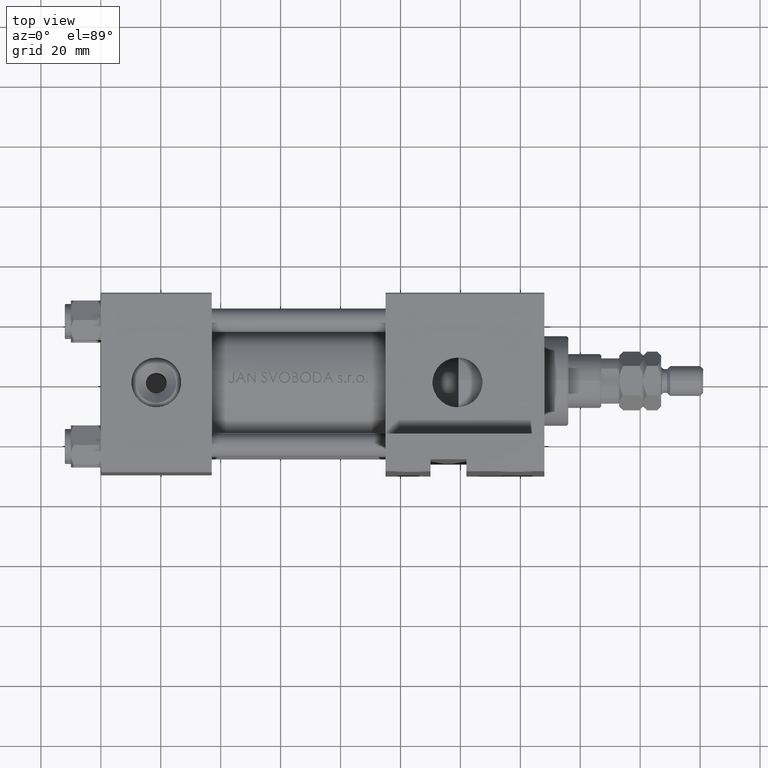
[diagram: clean part render]
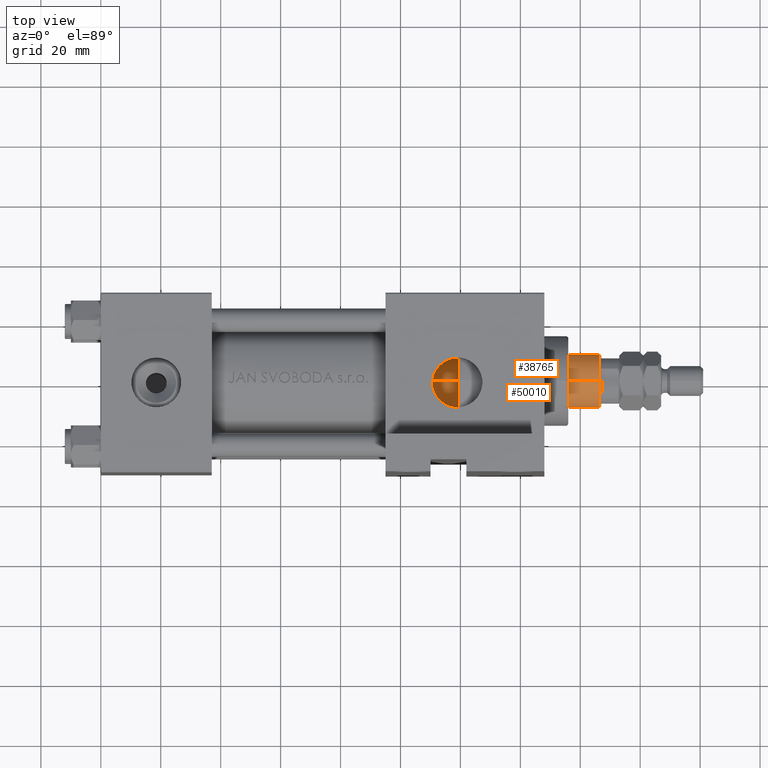
[diagram: same view with one multi-face feature highlighted, each face labeled with its STEP entity id]
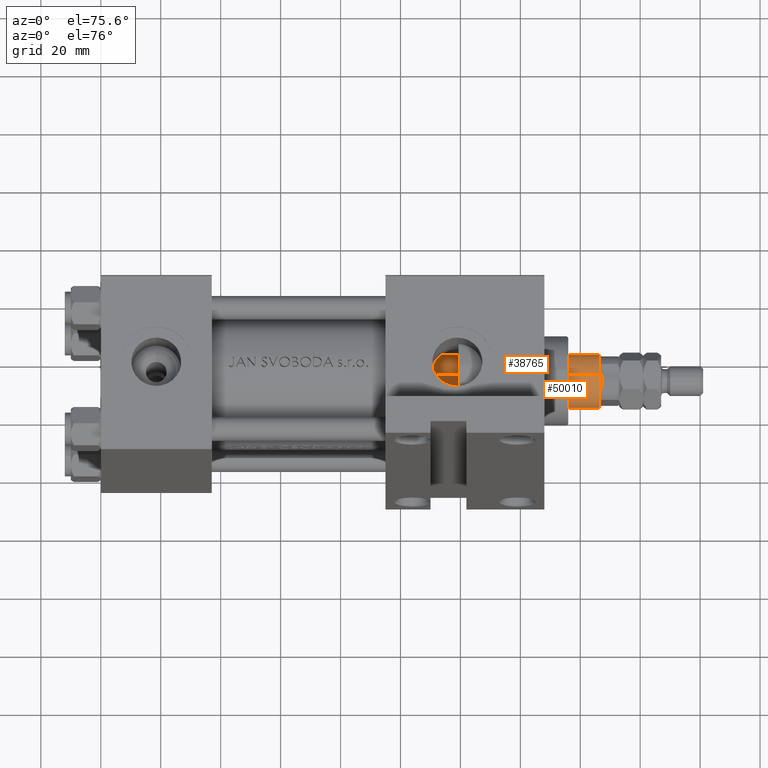
[diagram: same view with one multi-face feature highlighted, each face labeled with its STEP entity id]
A machine part, top view. The highlighted faces form ONE feature: a constant-radius fillet chain: 2 tangent blend faces with common blend radius 9 mm. The faces share edges in the B-rep.
A second angle (auxiliary view) of the same feature is appended — it is thin or edge-on in the first view.
Their STEP definitions:
[1] entity #50010 (Cylinder):
#1448 = FACE_OUTER_BOUND ( 'NONE', #5015, .T. ) ;
#2354 = DIRECTION ( 'NONE',  ( 0.000000000000000000, 0.000000000000000000, -1.000000000000000000 ) ) ;
#2552 = CIRCLE ( 'NONE', #48197, 9.000000000000000000 ) ;
#5015 = EDGE_LOOP ( 'NONE', ( #27031, #22689, #8510, #32571 ) ) ;
#7445 = CARTESIAN_POINT ( 'NONE',  ( -9.000000000000000000, 0.000000000000000000, 38.00000000000000000 ) ) ;
#7487 = VECTOR ( 'NONE', #16770, 1000.000000000000000 ) ;
#8510 = ORIENTED_EDGE ( 'NONE', *, *, #26155, .T. ) ;
#9318 = DIRECTION ( 'NONE',  ( 1.000000000000000000, 0.000000000000000000, 0.000000000000000000 ) ) ;
#11097 = DIRECTION ( 'NONE',  ( -0.000000000000000000, -0.000000000000000000, -1.000000000000000000 ) ) ;
#12755 = CARTESIAN_POINT ( 'NONE',  ( 0.000000000000000000, 0.000000000000000000, 38.00000000000000000 ) ) ;
#13107 = DIRECTION ( 'NONE',  ( -0.000000000000000000, -0.000000000000000000, -1.000000000000000000 ) ) ;
#15849 = LINE ( 'NONE', #27217, #27127 ) ;
#16307 = EDGE_CURVE ( 'NONE', #23542, #27494, #17547, .T. ) ;
#16770 = DIRECTION ( 'NONE',  ( -0.000000000000000000, -0.000000000000000000, -1.000000000000000000 ) ) ;
#17242 = DIRECTION ( 'NONE',  ( 0.000000000000000000, 0.000000000000000000, 1.000000000000000000 ) ) ;
#17547 = LINE ( 'NONE', #25223, #7487 ) ;
#22689 = ORIENTED_EDGE ( 'NONE', *, *, #31372, .T. ) ;
#22897 = EDGE_CURVE ( 'NONE', #23542, #51284, #52287, .T. ) ;
#23542 = VERTEX_POINT ( 'NONE', #40266 ) ;
#25223 = CARTESIAN_POINT ( 'NONE',  ( -9.000000000000000000, 0.000000000000000000, 130.0000000000000000 ) ) ;
#25262 = DIRECTION ( 'NONE',  ( -1.000000000000000000, 0.000000000000000000, 0.000000000000000000 ) ) ;
#26155 = EDGE_CURVE ( 'NONE', #40544, #27494, #2552, .T. ) ;
#26430 = DIRECTION ( 'NONE',  ( 1.000000000000000000, 0.000000000000000000, 0.000000000000000000 ) ) ;
#27031 = ORIENTED_EDGE ( 'NONE', *, *, #22897, .T. ) ;
#27127 = VECTOR ( 'NONE', #11097, 1000.000000000000000 ) ;
#27217 = CARTESIAN_POINT ( 'NONE',  ( 9.000000000000000000, 1.102182119232617714E-15, 130.0000000000000000 ) ) ;
#27494 = VERTEX_POINT ( 'NONE', #7445 ) ;
#29419 = AXIS2_PLACEMENT_3D ( 'NONE', #40133, #2354, #26430 ) ;
#31372 = EDGE_CURVE ( 'NONE', #51284, #40544, #15849, .T. ) ;
#32571 = ORIENTED_EDGE ( 'NONE', *, *, #16307, .F. ) ;
#33414 = CARTESIAN_POINT ( 'NONE',  ( 9.000000000000000000, 1.102182119232617714E-15, 129.5000000000000000 ) ) ;
#33727 = CYLINDRICAL_SURFACE ( 'NONE', #35192, 9.000000000000000000 ) ;
#34949 = CARTESIAN_POINT ( 'NONE',  ( 9.000000000000000000, 1.102182119232617714E-15, 38.00000000000000000 ) ) ;
#35192 = AXIS2_PLACEMENT_3D ( 'NONE', #49362, #13107, #25262 ) ;
#40133 = CARTESIAN_POINT ( 'NONE',  ( 0.000000000000000000, 0.000000000000000000, 129.5000000000000000 ) ) ;
#40266 = CARTESIAN_POINT ( 'NONE',  ( -9.000000000000000000, 0.000000000000000000, 129.5000000000000000 ) ) ;
#40544 = VERTEX_POINT ( 'NONE', #34949 ) ;
#48197 = AXIS2_PLACEMENT_3D ( 'NONE', #12755, #17242, #9318 ) ;
#49362 = CARTESIAN_POINT ( 'NONE',  ( 0.000000000000000000, 0.000000000000000000, 130.0000000000000000 ) ) ;
#50010 = ADVANCED_FACE ( 'NONE', ( #1448 ), #33727, .T. ) ;
#51284 = VERTEX_POINT ( 'NONE', #33414 ) ;
#52287 = CIRCLE ( 'NONE', #29419, 9.000000000000000000 ) ;
[2] entity #38765 (Cylinder):
#234 = DIRECTION ( 'NONE',  ( -0.000000000000000000, -0.000000000000000000, -1.000000000000000000 ) ) ;
#238 = EDGE_CURVE ( 'NONE', #51284, #23542, #15148, .T. ) ;
#368 = AXIS2_PLACEMENT_3D ( 'NONE', #28282, #234, #12406 ) ;
#1792 = ORIENTED_EDGE ( 'NONE', *, *, #31372, .F. ) ;
#5250 = EDGE_LOOP ( 'NONE', ( #1792, #12670, #45261, #15548 ) ) ;
#6031 = DIRECTION ( 'NONE',  ( 0.000000000000000000, 0.000000000000000000, 1.000000000000000000 ) ) ;
#7445 = CARTESIAN_POINT ( 'NONE',  ( -9.000000000000000000, 0.000000000000000000, 38.00000000000000000 ) ) ;
#7487 = VECTOR ( 'NONE', #16770, 1000.000000000000000 ) ;
#11097 = DIRECTION ( 'NONE',  ( -0.000000000000000000, -0.000000000000000000, -1.000000000000000000 ) ) ;
#12197 = DIRECTION ( 'NONE',  ( 1.000000000000000000, 0.000000000000000000, 0.000000000000000000 ) ) ;
#12406 = DIRECTION ( 'NONE',  ( -1.000000000000000000, 0.000000000000000000, 0.000000000000000000 ) ) ;
#12670 = ORIENTED_EDGE ( 'NONE', *, *, #238, .T. ) ;
#13136 = AXIS2_PLACEMENT_3D ( 'NONE', #42292, #6031, #29835 ) ;
#15148 = CIRCLE ( 'NONE', #32846, 9.000000000000000000 ) ;
#15548 = ORIENTED_EDGE ( 'NONE', *, *, #45462, .T. ) ;
#15849 = LINE ( 'NONE', #27217, #27127 ) ;
#16307 = EDGE_CURVE ( 'NONE', #23542, #27494, #17547, .T. ) ;
#16677 = CARTESIAN_POINT ( 'NONE',  ( 0.000000000000000000, 0.000000000000000000, 129.5000000000000000 ) ) ;
#16770 = DIRECTION ( 'NONE',  ( -0.000000000000000000, -0.000000000000000000, -1.000000000000000000 ) ) ;
#17547 = LINE ( 'NONE', #25223, #7487 ) ;
#20605 = CYLINDRICAL_SURFACE ( 'NONE', #368, 9.000000000000000000 ) ;
#23542 = VERTEX_POINT ( 'NONE', #40266 ) ;
#24563 = FACE_OUTER_BOUND ( 'NONE', #5250, .T. ) ;
#25223 = CARTESIAN_POINT ( 'NONE',  ( -9.000000000000000000, 0.000000000000000000, 130.0000000000000000 ) ) ;
#27127 = VECTOR ( 'NONE', #11097, 1000.000000000000000 ) ;
#27217 = CARTESIAN_POINT ( 'NONE',  ( 9.000000000000000000, 1.102182119232617714E-15, 130.0000000000000000 ) ) ;
#27494 = VERTEX_POINT ( 'NONE', #7445 ) ;
#28282 = CARTESIAN_POINT ( 'NONE',  ( 0.000000000000000000, 0.000000000000000000, 130.0000000000000000 ) ) ;
#29835 = DIRECTION ( 'NONE',  ( 1.000000000000000000, 0.000000000000000000, 0.000000000000000000 ) ) ;
#31372 = EDGE_CURVE ( 'NONE', #51284, #40544, #15849, .T. ) ;
#31777 = CIRCLE ( 'NONE', #13136, 9.000000000000000000 ) ;
#32846 = AXIS2_PLACEMENT_3D ( 'NONE', #16677, #40021, #12197 ) ;
#33414 = CARTESIAN_POINT ( 'NONE',  ( 9.000000000000000000, 1.102182119232617714E-15, 129.5000000000000000 ) ) ;
#34949 = CARTESIAN_POINT ( 'NONE',  ( 9.000000000000000000, 1.102182119232617714E-15, 38.00000000000000000 ) ) ;
#38765 = ADVANCED_FACE ( 'NONE', ( #24563 ), #20605, .T. ) ;
#40021 = DIRECTION ( 'NONE',  ( 0.000000000000000000, 0.000000000000000000, -1.000000000000000000 ) ) ;
#40266 = CARTESIAN_POINT ( 'NONE',  ( -9.000000000000000000, 0.000000000000000000, 129.5000000000000000 ) ) ;
#40544 = VERTEX_POINT ( 'NONE', #34949 ) ;
#42292 = CARTESIAN_POINT ( 'NONE',  ( 0.000000000000000000, 0.000000000000000000, 38.00000000000000000 ) ) ;
#45261 = ORIENTED_EDGE ( 'NONE', *, *, #16307, .T. ) ;
#45462 = EDGE_CURVE ( 'NONE', #27494, #40544, #31777, .T. ) ;
#51284 = VERTEX_POINT ( 'NONE', #33414 ) ;